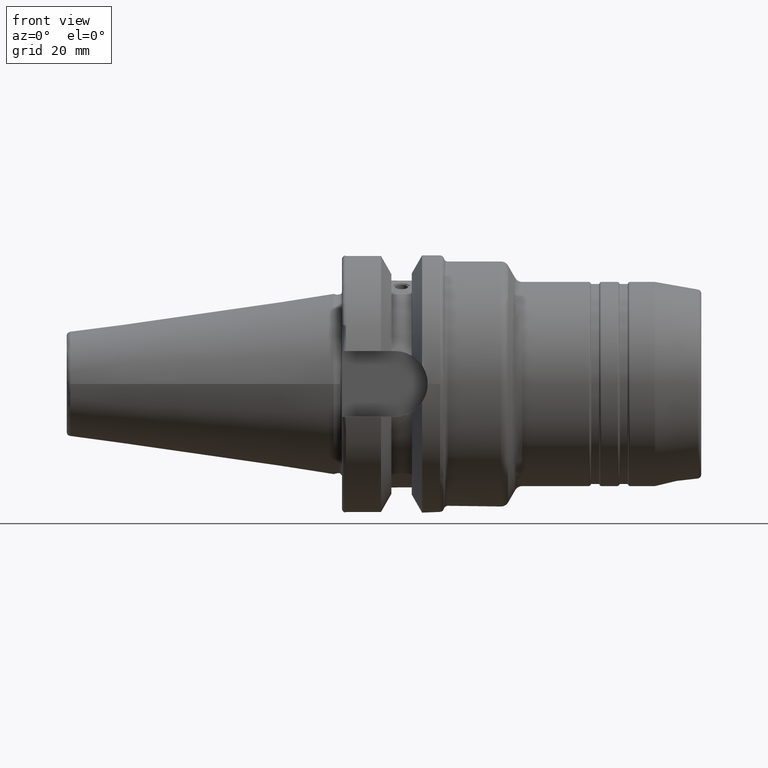
[diagram: clean part render]
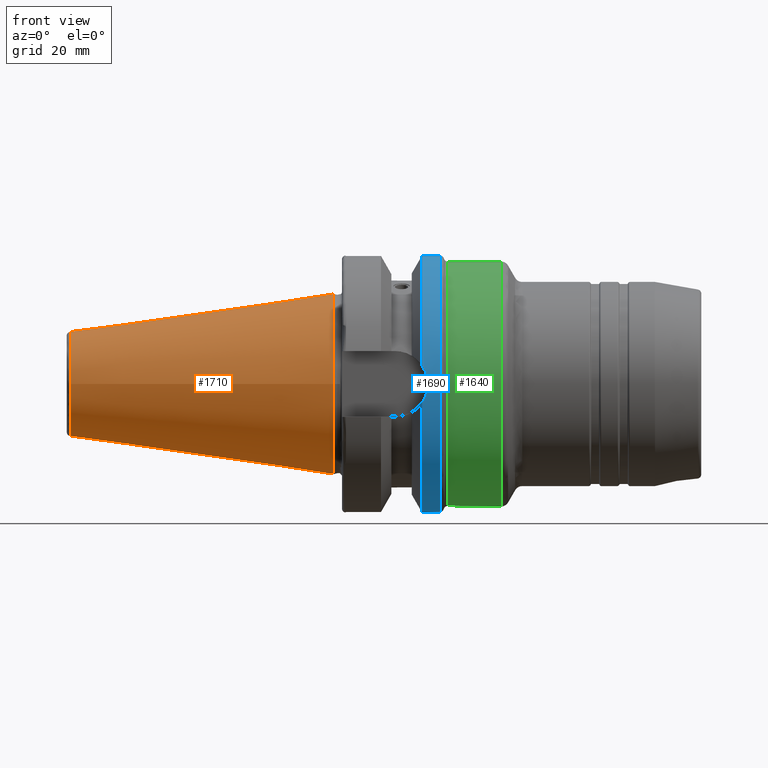
[diagram: same view with three faces highlighted in distinct colors, each labeled with its STEP entity id]
A machine part, front view with three faces highlighted in distinct colors.
Their STEP definitions:

[orange] entity #1710 — the highlighted conical surface has half-angle 8.297 deg.
#129=CONICAL_SURFACE('',#1971,17.5186442890469,0.144812498238939);
#209=FACE_OUTER_BOUND('',#310,.T.);
#310=EDGE_LOOP('',(#1527,#1528,#1529,#1530,#1531,#1532,#1533));
#393=LINE('',#3332,#463);
#463=VECTOR('',#2533,17.5186442890469);
#596=CIRCLE('',#1967,12.8122885780937);
#597=CIRCLE('',#1968,12.8122885780937);
#598=CIRCLE('',#1969,12.8122885780937);
#600=CIRCLE('',#1972,22.225);
#601=CIRCLE('',#1973,22.225);
#790=VERTEX_POINT('',#3320);
#791=VERTEX_POINT('',#3321);
#792=VERTEX_POINT('',#3323);
#793=VERTEX_POINT('',#3328);
#794=VERTEX_POINT('',#3329);
#1044=EDGE_CURVE('',#790,#791,#596,.T.);
#1045=EDGE_CURVE('',#792,#790,#597,.T.);
#1046=EDGE_CURVE('',#791,#792,#598,.T.);
#1048=EDGE_CURVE('',#793,#794,#600,.T.);
#1049=EDGE_CURVE('',#794,#793,#601,.T.);
#1050=EDGE_CURVE('',#794,#792,#393,.T.);
#1527=ORIENTED_EDGE('',*,*,#1048,.F.);
#1528=ORIENTED_EDGE('',*,*,#1049,.F.);
#1529=ORIENTED_EDGE('',*,*,#1050,.T.);
#1530=ORIENTED_EDGE('',*,*,#1045,.T.);
#1531=ORIENTED_EDGE('',*,*,#1044,.T.);
#1532=ORIENTED_EDGE('',*,*,#1046,.T.);
#1533=ORIENTED_EDGE('',*,*,#1050,.F.);
#1710=ADVANCED_FACE('',(#209),#129,.T.);
#1967=AXIS2_PLACEMENT_3D('',#3322,#2519,#2520);
#1968=AXIS2_PLACEMENT_3D('',#3324,#2521,#2522);
#1969=AXIS2_PLACEMENT_3D('',#3325,#2523,#2524);
#1971=AXIS2_PLACEMENT_3D('',#3327,#2527,#2528);
#1972=AXIS2_PLACEMENT_3D('',#3330,#2529,#2530);
#1973=AXIS2_PLACEMENT_3D('',#3331,#2531,#2532);
#2519=DIRECTION('center_axis',(1.,0.,0.));
#2520=DIRECTION('ref_axis',(0.,0.,-1.));
#2521=DIRECTION('center_axis',(1.,0.,0.));
#2522=DIRECTION('ref_axis',(0.,0.,-1.));
#2523=DIRECTION('center_axis',(1.,0.,0.));
#2524=DIRECTION('ref_axis',(0.,0.,-1.));
#2527=DIRECTION('center_axis',(1.,0.,0.));
#2528=DIRECTION('ref_axis',(0.,1.,0.));
#2529=DIRECTION('center_axis',(1.,0.,0.));
#2530=DIRECTION('ref_axis',(0.,0.,-1.));
#2531=DIRECTION('center_axis',(1.,0.,0.));
#2532=DIRECTION('ref_axis',(0.,0.,-1.));
#2533=DIRECTION('',(-0.989532981063281,0.144306893071729,1.76724974695192E-17));
#3320=CARTESIAN_POINT('',(-64.5443068930717,12.8122885780937,0.));
#3321=CARTESIAN_POINT('',(-64.5443068930717,-1.56905281969147E-15,12.8122885780937));
#3322=CARTESIAN_POINT('Origin',(-64.5443068930717,0.,0.));
#3323=CARTESIAN_POINT('',(-64.5443068930717,-12.8122885780937,-1.56905281969147E-15));
#3324=CARTESIAN_POINT('Origin',(-64.5443068930717,0.,0.));
#3325=CARTESIAN_POINT('Origin',(-64.5443068930717,0.,0.));
#3327=CARTESIAN_POINT('Origin',(-32.2721534465359,0.,0.));
#3328=CARTESIAN_POINT('',(1.11022302462516E-15,22.225,0.));
#3329=CARTESIAN_POINT('',(4.44089209850063E-15,-22.225,-2.72177751110499E-15));
#3330=CARTESIAN_POINT('Origin',(0.,0.,0.));
#3331=CARTESIAN_POINT('Origin',(0.,0.,0.));
#3332=CARTESIAN_POINT('',(-32.2721534465359,-17.5186442890469,-2.14541516539823E-15));

[blue] entity #1690 — the highlighted cylindrical surface (bore or boss wall) has radius 31.5 mm, axis along (1, 0, 0).
#102=B_SPLINE_CURVE_WITH_KNOTS('',3,(#3069,#3070,#3071,#3072,#3073,#3074),
 .UNSPECIFIED.,.F.,.F.,(4,2,4),(1.21877751840372,1.52344857393281,1.67526011710938),
 .UNSPECIFIED.);
#103=B_SPLINE_CURVE_WITH_KNOTS('',3,(#3076,#3077,#3078,#3079,#3080,#3081),
 .UNSPECIFIED.,.F.,.F.,(4,2,4),(0.762294919698051,0.914106462874623,1.21877751840372),
 .UNSPECIFIED.);
#108=B_SPLINE_CURVE_WITH_KNOTS('',3,(#3165,#3166,#3167,#3168,#3169,#3170,
#3171,#3172,#3173,#3174),.UNSPECIFIED.,.F.,.F.,(4,2,2,2,4),(3.19984995650548,
3.35166149968206,3.65633255521115,3.96100361074024,4.11281515391681),
 .UNSPECIFIED.);
#189=FACE_OUTER_BOUND('',#287,.T.);
#287=EDGE_LOOP('',(#1411,#1412,#1413,#1414,#1415,#1416,#1417,#1418,#1419,
#1420));
#374=LINE('',#3161,#444);
#444=VECTOR('',#2410,31.5);
#568=CIRCLE('',#1920,31.5);
#569=CIRCLE('',#1921,31.5);
#570=CIRCLE('',#1922,31.5);
#571=CIRCLE('',#1923,31.5);
#572=CIRCLE('',#1924,31.5);
#732=VERTEX_POINT('',#3061);
#733=VERTEX_POINT('',#3068);
#734=VERTEX_POINT('',#3075);
#752=VERTEX_POINT('',#3156);
#753=VERTEX_POINT('',#3157);
#754=VERTEX_POINT('',#3159);
#755=VERTEX_POINT('',#3162);
#756=VERTEX_POINT('',#3164);
#965=EDGE_CURVE('',#733,#732,#102,.T.);
#966=EDGE_CURVE('',#734,#733,#103,.T.);
#988=EDGE_CURVE('',#752,#753,#568,.T.);
#989=EDGE_CURVE('',#754,#752,#569,.T.);
#990=EDGE_CURVE('',#754,#733,#374,.T.);
#991=EDGE_CURVE('',#732,#755,#570,.T.);
#992=EDGE_CURVE('',#755,#756,#108,.T.);
#993=EDGE_CURVE('',#756,#734,#571,.T.);
#994=EDGE_CURVE('',#753,#754,#572,.T.);
#1411=ORIENTED_EDGE('',*,*,#988,.F.);
#1412=ORIENTED_EDGE('',*,*,#989,.F.);
#1413=ORIENTED_EDGE('',*,*,#990,.T.);
#1414=ORIENTED_EDGE('',*,*,#965,.T.);
#1415=ORIENTED_EDGE('',*,*,#991,.T.);
#1416=ORIENTED_EDGE('',*,*,#992,.T.);
#1417=ORIENTED_EDGE('',*,*,#993,.T.);
#1418=ORIENTED_EDGE('',*,*,#966,.T.);
#1419=ORIENTED_EDGE('',*,*,#990,.F.);
#1420=ORIENTED_EDGE('',*,*,#994,.F.);
#1624=CYLINDRICAL_SURFACE('',#1919,31.5);
#1690=ADVANCED_FACE('',(#189),#1624,.T.);
#1919=AXIS2_PLACEMENT_3D('',#3155,#2404,#2405);
#1920=AXIS2_PLACEMENT_3D('',#3158,#2406,#2407);
#1921=AXIS2_PLACEMENT_3D('',#3160,#2408,#2409);
#1922=AXIS2_PLACEMENT_3D('',#3163,#2411,#2412);
#1923=AXIS2_PLACEMENT_3D('',#3175,#2413,#2414);
#1924=AXIS2_PLACEMENT_3D('',#3176,#2415,#2416);
#2404=DIRECTION('center_axis',(1.,0.,0.));
#2405=DIRECTION('ref_axis',(0.,1.,0.));
#2406=DIRECTION('center_axis',(1.,0.,0.));
#2407=DIRECTION('ref_axis',(0.,0.,-1.));
#2408=DIRECTION('center_axis',(1.,0.,0.));
#2409=DIRECTION('ref_axis',(0.,0.,-1.));
#2410=DIRECTION('',(-1.,0.,0.));
#2411=DIRECTION('center_axis',(1.,0.,0.));
#2412=DIRECTION('ref_axis',(0.,0.,-1.));
#2413=DIRECTION('center_axis',(1.,0.,0.));
#2414=DIRECTION('ref_axis',(0.,0.,-1.));
#2415=DIRECTION('center_axis',(1.,0.,0.));
#2416=DIRECTION('ref_axis',(0.,0.,-1.));
#3061=CARTESIAN_POINT('',(21.6309636926618,-31.1782420264945,-4.4907932637046));
#3068=CARTESIAN_POINT('',(23.,-31.5,-1.51248507442265E-15));
#3069=CARTESIAN_POINT('Ctrl Pts',(23.,-31.5,8.32667268468867E-16));
#3070=CARTESIAN_POINT('Ctrl Pts',(23.,-31.5,-1.01557018509698));
#3071=CARTESIAN_POINT('Ctrl Pts',(22.7961189876535,-31.445974204441,-2.09580170425552));
#3072=CARTESIAN_POINT('Ctrl Pts',(22.1796133812044,-31.2997625705024,-3.58065358198869));
#3073=CARTESIAN_POINT('Ctrl Pts',(21.92482980253,-31.2412125047166,-4.05360796141051));
#3074=CARTESIAN_POINT('Ctrl Pts',(21.6309636926618,-31.1782420264945,-4.4907932637046));
#3075=CARTESIAN_POINT('',(21.6309636926618,-31.1782420264945,4.4907932637046));
#3076=CARTESIAN_POINT('Ctrl Pts',(21.6309636926618,-31.1782420264945,4.4907932637046));
#3077=CARTESIAN_POINT('Ctrl Pts',(21.92482980253,-31.2412125047166,4.05360796141051));
#3078=CARTESIAN_POINT('Ctrl Pts',(22.1796133812044,-31.2997625705024,3.58065358198869));
#3079=CARTESIAN_POINT('Ctrl Pts',(22.7961189876535,-31.445974204441,2.09580170425552));
#3080=CARTESIAN_POINT('Ctrl Pts',(23.,-31.5,1.01557018509698));
#3081=CARTESIAN_POINT('Ctrl Pts',(23.,-31.5,-2.77555756156289E-16));
#3155=CARTESIAN_POINT('Origin',(23.8154818463309,0.,0.));
#3156=CARTESIAN_POINT('',(26.,31.5,0.));
#3157=CARTESIAN_POINT('',(26.,-3.85763741731416E-15,31.5));
#3158=CARTESIAN_POINT('Origin',(26.,0.,0.));
#3159=CARTESIAN_POINT('',(26.,-31.5,-3.85763741731416E-15));
#3160=CARTESIAN_POINT('Origin',(26.,0.,0.));
#3161=CARTESIAN_POINT('',(23.8154818463309,-31.5,-3.85763741731416E-15));
#3162=CARTESIAN_POINT('',(21.6309636926618,31.1782420264945,-4.4907932637046));
#3163=CARTESIAN_POINT('Origin',(21.6309636926618,0.,0.));
#3164=CARTESIAN_POINT('',(21.6309636926618,31.1782420264945,4.4907932637046));
#3165=CARTESIAN_POINT('Ctrl Pts',(21.6309636926618,31.1782420264945,-4.4907932637046));
#3166=CARTESIAN_POINT('Ctrl Pts',(21.92482980253,31.2412125047166,-4.05360796141051));
#3167=CARTESIAN_POINT('Ctrl Pts',(22.1796133812044,31.2997625705024,-3.58065358198869));
#3168=CARTESIAN_POINT('Ctrl Pts',(22.7961189876535,31.445974204441,-2.09580170425552));
#3169=CARTESIAN_POINT('Ctrl Pts',(23.,31.5,-1.01557018509698));
#3170=CARTESIAN_POINT('Ctrl Pts',(23.,31.5,1.01557018509698));
#3171=CARTESIAN_POINT('Ctrl Pts',(22.7961189876535,31.445974204441,2.09580170425552));
#3172=CARTESIAN_POINT('Ctrl Pts',(22.1796133812044,31.2997625705024,3.58065358198869));
#3173=CARTESIAN_POINT('Ctrl Pts',(21.92482980253,31.2412125047166,4.05360796141051));
#3174=CARTESIAN_POINT('Ctrl Pts',(21.6309636926618,31.1782420264945,4.4907932637046));
#3175=CARTESIAN_POINT('Origin',(21.6309636926618,0.,0.));
#3176=CARTESIAN_POINT('Origin',(26.,0.,0.));

[green] entity #1640 — the highlighted cylindrical surface (bore or boss wall) has radius 30 mm, axis along (1, 0, 0).
#139=FACE_OUTER_BOUND('',#230,.T.);
#230=EDGE_LOOP('',(#1113,#1114,#1115,#1116,#1117));
#331=LINE('',#2715,#401);
#401=VECTOR('',#2061,30.);
#483=CIRCLE('',#1766,30.);
#484=CIRCLE('',#1767,30.);
#485=CIRCLE('',#1769,30.);
#636=VERTEX_POINT('',#2708);
#637=VERTEX_POINT('',#2710);
#638=VERTEX_POINT('',#2714);
#828=EDGE_CURVE('',#636,#637,#483,.T.);
#829=EDGE_CURVE('',#637,#636,#484,.T.);
#830=EDGE_CURVE('',#636,#638,#331,.T.);
#831=EDGE_CURVE('',#638,#638,#485,.T.);
#1113=ORIENTED_EDGE('',*,*,#829,.F.);
#1114=ORIENTED_EDGE('',*,*,#828,.F.);
#1115=ORIENTED_EDGE('',*,*,#830,.T.);
#1116=ORIENTED_EDGE('',*,*,#831,.F.);
#1117=ORIENTED_EDGE('',*,*,#830,.F.);
#1603=CYLINDRICAL_SURFACE('',#1768,30.);
#1640=ADVANCED_FACE('',(#139),#1603,.T.);
#1766=AXIS2_PLACEMENT_3D('',#2711,#2055,#2056);
#1767=AXIS2_PLACEMENT_3D('',#2712,#2057,#2058);
#1768=AXIS2_PLACEMENT_3D('',#2713,#2059,#2060);
#1769=AXIS2_PLACEMENT_3D('',#2716,#2062,#2063);
#2055=DIRECTION('center_axis',(1.,0.,0.));
#2056=DIRECTION('ref_axis',(0.,1.22464679914735E-16,1.));
#2057=DIRECTION('center_axis',(1.,0.,0.));
#2058=DIRECTION('ref_axis',(0.,1.22464679914735E-16,1.));
#2059=DIRECTION('center_axis',(1.,0.,0.));
#2060=DIRECTION('ref_axis',(0.,0.,-1.));
#2061=DIRECTION('',(-1.,0.,0.));
#2062=DIRECTION('center_axis',(-1.,0.,0.));
#2063=DIRECTION('ref_axis',(0.,1.22464679914735E-16,-1.));
#2708=CARTESIAN_POINT('',(40.9585481156726,-3.67394039744206E-15,30.));
#2710=CARTESIAN_POINT('',(40.9585481156726,0.,-30.));
#2711=CARTESIAN_POINT('Origin',(40.9585481156726,0.,0.));
#2712=CARTESIAN_POINT('Origin',(40.9585481156726,0.,0.));
#2713=CARTESIAN_POINT('Origin',(34.5566243270259,0.,0.));
#2714=CARTESIAN_POINT('',(27.9364916731037,0.,30.));
#2715=CARTESIAN_POINT('',(34.5566243270259,-3.67394039744206E-15,30.));
#2716=CARTESIAN_POINT('Origin',(27.9364916731037,0.,0.));